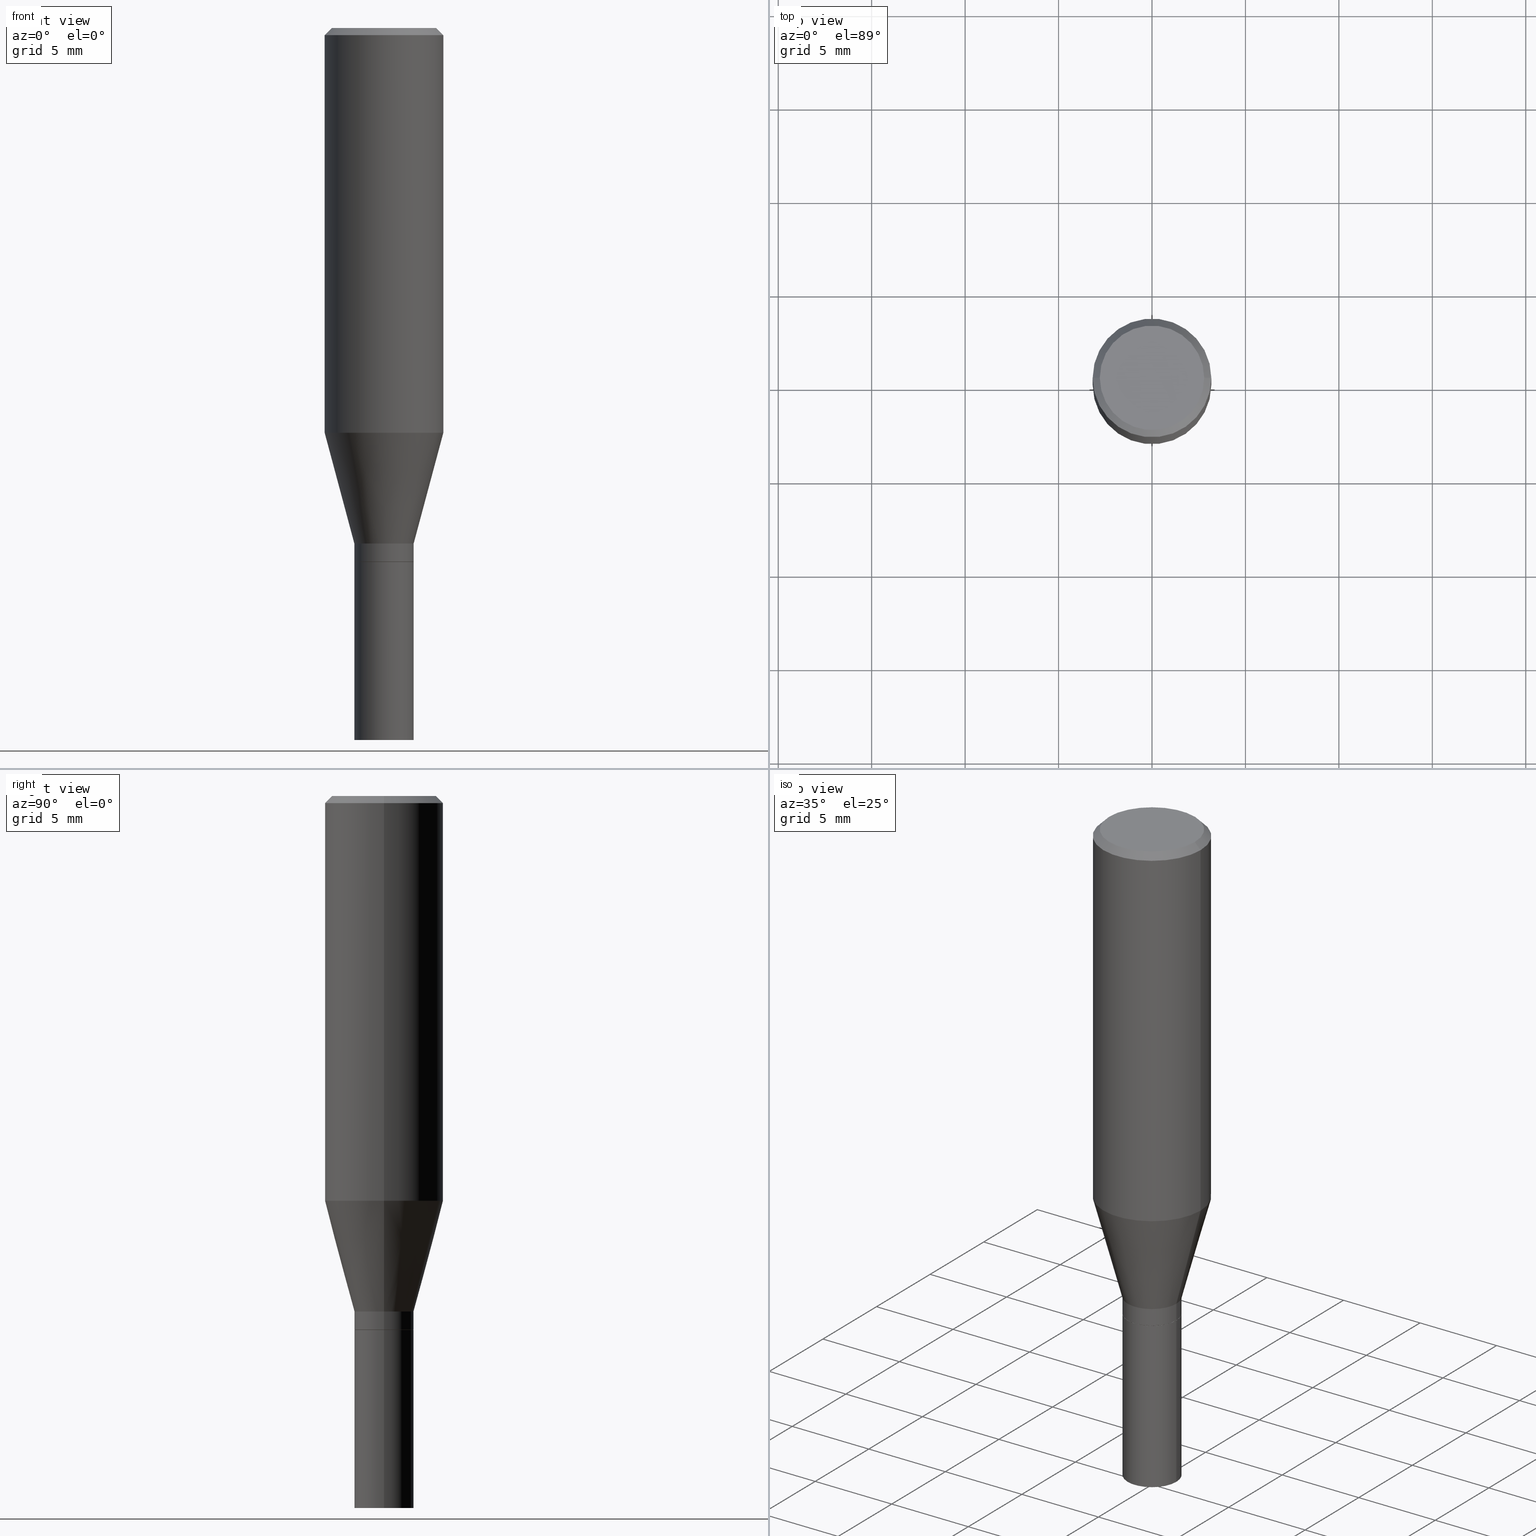
[diagram: canonical four-view strip — front | top / right | iso, engineering-drawing reading convention]
A machine part, canonical four-view strip (front | top / right | iso — engineering-drawing reading convention). The complete STEP part file that produces these views, byte-faithful:
ISO-10303-21;
HEADER;
FILE_DESCRIPTION (( 'STEP AP203' ),
    '1' );
FILE_NAME ('32270.STEP',
    '2024-03-13T16:37:03',
    ( '' ),
    ( '' ),
    'SwSTEP 2.0',
    'SolidWorks 2023',
    '' );
FILE_SCHEMA (( 'CONFIG_CONTROL_DESIGN' ));
ENDSEC;

DATA;
#1 = ADVANCED_FACE ( 'NONE', ( #270 ), #175, .T. ) ;
#2 = EDGE_LOOP ( 'NONE', ( #282, #218, #55, #86 ) ) ;
#3 = DIRECTION ( 'NONE',  ( 1.000000000000000000, -6.982962677686266711E-15, 0.000000000000000000 ) ) ;
#4 = ADVANCED_FACE ( 'NONE', ( #27 ), #19, .T. ) ;
#5 = AXIS2_PLACEMENT_3D ( 'NONE', #310, #352, #205 ) ;
#6 = ORIENTED_EDGE ( 'NONE', *, *, #449, .T. ) ;
#7 = ORIENTED_EDGE ( 'NONE', *, *, #449, .F. ) ;
#8 = ORIENTED_EDGE ( 'NONE', *, *, #350, .T. ) ;
#9 = DIRECTION ( 'NONE',  ( -2.445468806185136597E-29, 3.491481338843145583E-15, 1.000000000000000000 ) ) ;
#10 = PRODUCT ( '32270', '32270', '', ( #125 ) ) ;
#11 = VERTEX_POINT ( 'NONE', #241 ) ;
#12 = CARTESIAN_POINT ( 'NONE',  ( 2.751152406958279232E-29, -3.927916506198539224E-15, -1.125000000000000222 ) ) ;
#13 = AXIS2_PLACEMENT_3D ( 'NONE', #423, #394, #319 ) ;
#14 = ORIENTED_EDGE ( 'NONE', *, *, #193, .F. ) ;
#15 =( CONVERSION_BASED_UNIT ( 'INCH', #258 ) LENGTH_UNIT ( ) NAMED_UNIT ( #190 ) );
#16 = APPROVAL_DATE_TIME ( #343, #266 ) ;
#17 = ADVANCED_FACE ( 'NONE', ( #465 ), #358, .T. ) ;
#18 = PERSON_AND_ORGANIZATION ( #22, #92 ) ;
#19 = CONICAL_SURFACE ( 'NONE', #26, 0.06249999999999992367, 0.2617993877991499074 ) ;
#20 = VECTOR ( 'NONE', #412, 39.37007874015748143 ) ;
#21 = COORDINATED_UNIVERSAL_TIME_OFFSET ( 5, 0, .BEHIND. ) ;
#22 = PERSON ( 'UNSPECIFIED', 'UNSPECIFIED', 'UNSPECIFIED', ('UNSPECIFIED'), ('UNSPECIFIED'), ('UNSPECIFIED') ) ;
#23 = CC_DESIGN_DATE_AND_TIME_ASSIGNMENT ( #102, #264, ( #398 ) ) ;
#24 = DIRECTION ( 'NONE',  ( -2.445468806185136597E-29, 3.491481338843145583E-15, 1.000000000000000000 ) ) ;
#25 = CARTESIAN_POINT ( 'NONE',  ( 2.749929672555186430E-29, -3.926170765529117721E-15, -1.124500000000000055 ) ) ;
#26 = AXIS2_PLACEMENT_3D ( 'NONE', #210, #105, #183 ) ;
#27 = FACE_OUTER_BOUND ( 'NONE', #74, .T. ) ;
#28 = CARTESIAN_POINT ( 'NONE',  ( 0.000000000000000000, 0.000000000000000000, 0.000000000000000000 ) ) ;
#29 = CARTESIAN_POINT ( 'NONE',  ( 0.06199999999999999956, -4.360860192215087098E-15, -1.125000000000000000 ) ) ;
#30 = CARTESIAN_POINT ( 'NONE',  ( 0.000000000000000000, 0.000000000000000000, 0.000000000000000000 ) ) ;
#31 = PERSON_AND_ORGANIZATION_ROLE ( 'creator' ) ;
#32 = CARTESIAN_POINT ( 'NONE',  ( 2.751152406958279232E-29, -3.927916506198539224E-15, -1.125000000000000222 ) ) ;
#33 = CARTESIAN_POINT ( 'NONE',  ( 0.1250000000000000000, -9.252425547934304180E-16, -0.01499999999999999944 ) ) ;
#34 = APPLICATION_CONTEXT ( 'configuration controlled 3d designs of mechanical parts and assemblies' ) ;
#35 = CYLINDRICAL_SURFACE ( 'NONE', #36, 0.06250000000000000000 ) ;
#36 = AXIS2_PLACEMENT_3D ( 'NONE', #180, #397, #236 ) ;
#37 = AXIS2_PLACEMENT_3D ( 'NONE', #25, #277, #457 ) ;
#38 = ORIENTED_EDGE ( 'NONE', *, *, #233, .T. ) ;
#39 = EDGE_CURVE ( 'NONE', #369, #331, #212, .T. ) ;
#40 = FACE_OUTER_BOUND ( 'NONE', #225, .T. ) ;
#41 = ORIENTED_EDGE ( 'NONE', *, *, #389, .T. ) ;
#42 = AXIS2_PLACEMENT_3D ( 'NONE', #234, #172, #63 ) ;
#43 = EDGE_LOOP ( 'NONE', ( #409, #110, #404, #434 ) ) ;
#44 = AXIS2_PLACEMENT_3D ( 'NONE', #28, #279, #177 ) ;
#45 = ORIENTED_EDGE ( 'NONE', *, *, #170, .T. ) ;
#46 = ORIENTED_EDGE ( 'NONE', *, *, #339, .T. ) ;
#47 = CARTESIAN_POINT ( 'NONE',  ( 3.576687321579069994E-29, -5.368277968210015545E-15, -1.500000000000000222 ) ) ;
#48 = FACE_OUTER_BOUND ( 'NONE', #2, .T. ) ;
#49 = VERTEX_POINT ( 'NONE', #362 ) ;
#50 = EDGE_CURVE ( 'NONE', #369, #257, #133, .T. ) ;
#51 = CARTESIAN_POINT ( 'NONE',  ( 0.1250000000000000000, -3.850219959304363208E-15, -0.8527468245269455016 ) ) ;
#52 = LINE ( 'NONE', #444, #203 ) ;
#53 =( NAMED_UNIT ( * ) SI_UNIT ( $, .STERADIAN. ) SOLID_ANGLE_UNIT ( ) );
#54 = APPROVAL_PERSON_ORGANIZATION ( #275, #377, #359 ) ;
#55 = ORIENTED_EDGE ( 'NONE', *, *, #84, .T. ) ;
#56 = DATE_AND_TIME ( #380, #151 ) ;
#57 = UNCERTAINTY_MEASURE_WITH_UNIT (LENGTH_MEASURE( 1.000000000000000082E-05 ), #15, 'distance_accuracy_value', 'NONE');
#58 = PERSON_AND_ORGANIZATION_ROLE ( 'design_owner' ) ;
#59 = AXIS2_PLACEMENT_3D ( 'NONE', #30, #24, #243 ) ;
#60 = CARTESIAN_POINT ( 'NONE',  ( 2.655779123517058654E-29, -3.791748733983656424E-15, -1.086000000000000076 ) ) ;
#61 = EDGE_CURVE ( 'NONE', #375, #120, #323, .T. ) ;
#62 = EDGE_LOOP ( 'NONE', ( #127, #436, #156, #435 ) ) ;
#63 = DIRECTION ( 'NONE',  ( 1.000000000000000000, -6.982962677686262766E-15, 0.000000000000000000 ) ) ;
#64 = PERSON_AND_ORGANIZATION_ROLE ( 'classification_officer' ) ;
#65 = DIRECTION ( 'NONE',  ( -0.2588190451025211836, 5.211531920934547886E-15, 0.9659258262890679791 ) ) ;
#66 = CARTESIAN_POINT ( 'NONE',  ( 2.751152406958278671E-29, -3.927916506198539224E-15, -1.125000000000000000 ) ) ;
#67 = ADVANCED_FACE ( 'NONE', ( #139 ), #321, .T. ) ;
#68 = APPROVAL_DATE_TIME ( #56, #382 ) ;
#69 = DIRECTION ( 'NONE',  ( -2.445468806185136597E-29, 3.491481338843145583E-15, 1.000000000000000000 ) ) ;
#70 = DIRECTION ( 'NONE',  ( -2.438088387897960049E-29, 3.491481338843145188E-15, 1.000000000000000000 ) ) ;
#71 = DIRECTION ( 'NONE',  ( -2.445468806185136597E-29, 3.491481338843145583E-15, 1.000000000000000000 ) ) ;
#72 = CIRCLE ( 'NONE', #417, 0.06250000000000000000 ) ;
#73 = LOCAL_TIME ( 12, 37, 3.000000000000000000, #21 ) ;
#74 = EDGE_LOOP ( 'NONE', ( #152, #252, #191, #368 ) ) ;
#75 = EDGE_CURVE ( 'NONE', #257, #432, #281, .T. ) ;
#76 = DESIGN_CONTEXT ( 'detailed design', #34, 'design' ) ;
#77 = VERTEX_POINT ( 'NONE', #108 ) ;
#78 = EDGE_LOOP ( 'NONE', ( #195, #41, #442, #147 ) ) ;
#79 = LINE ( 'NONE', #222, #448 ) ;
#80 = PRODUCT_DEFINITION ( 'UNKNOWN', '', #338, #76 ) ;
#81 = CONICAL_SURFACE ( 'NONE', #346, 0.06199999999999999956, 0.7853981633977471510 ) ;
#82 = CC_DESIGN_APPROVAL ( #382, ( #338 ) ) ;
#83 = DIRECTION ( 'NONE',  ( 2.445468806185136597E-29, -3.491481338843145583E-15, -1.000000000000000000 ) ) ;
#84 = EDGE_CURVE ( 'NONE', #432, #91, #396, .T. ) ;
#85 = ADVANCED_FACE ( 'NONE', ( #353 ), #459, .F. ) ;
#86 = ORIENTED_EDGE ( 'NONE', *, *, #350, .F. ) ;
#87 = APPROVAL_ROLE ( '' ) ;
#88 = DIRECTION ( 'NONE',  ( -2.445468806185136597E-29, 3.491481338843145583E-15, 1.000000000000000000 ) ) ;
#89 = DIRECTION ( 'NONE',  ( 1.000000000000000000, -6.982962677686266711E-15, 4.876001053725558154E-29 ) ) ;
#90 = EDGE_CURVE ( 'NONE', #91, #371, #209, .T. ) ;
#91 = VERTEX_POINT ( 'NONE', #33 ) ;
#92 = ORGANIZATION ( 'UNSPECIFIED', 'UNSPECIFIED', '' ) ;
#93 = ORIENTED_EDGE ( 'NONE', *, *, #263, .T. ) ;
#94 = DIRECTION ( 'NONE',  ( 1.000000000000000000, -6.982962677686262766E-15, 0.000000000000000000 ) ) ;
#95 = DIRECTION ( 'NONE',  ( -2.445468806185136597E-29, 3.491481338843145583E-15, 1.000000000000000000 ) ) ;
#96 = CALENDAR_DATE ( 2024, 13, 3 ) ;
#97 = CIRCLE ( 'NONE', #253, 0.1100000000000000006 ) ;
#98 = CONICAL_SURFACE ( 'NONE', #268, 0.1250000000000000000, 0.7853981633974483900 ) ;
#99 = DIRECTION ( 'NONE',  ( -2.445468806185136597E-29, 3.491481338843145583E-15, 1.000000000000000000 ) ) ;
#100 = DIRECTION ( 'NONE',  ( 1.000000000000000000, -6.982962677686262766E-15, 0.000000000000000000 ) ) ;
#101 = FACE_OUTER_BOUND ( 'NONE', #301, .T. ) ;
#102 = DATE_AND_TIME ( #361, #327 ) ;
#103 = ADVANCED_FACE ( 'NONE', ( #278 ), #35, .T. ) ;
#104 = AXIS2_PLACEMENT_3D ( 'NONE', #12, #376, #94 ) ;
#105 = DIRECTION ( 'NONE',  ( -2.445468806185136597E-29, 3.491481338843145583E-15, 1.000000000000000000 ) ) ;
#106 = CARTESIAN_POINT ( 'NONE',  ( -0.06250000000000000000, -4.138480047381566479E-15, -1.500000000000000222 ) ) ;
#107 = DIRECTION ( 'NONE',  ( -2.445468806185136597E-29, 3.491481338843145583E-15, 1.000000000000000000 ) ) ;
#108 = CARTESIAN_POINT ( 'NONE',  ( 0.1100000000000000006, -8.322946247794786836E-16, -7.674416657715788472E-18 ) ) ;
#109 = CC_DESIGN_PERSON_AND_ORGANIZATION_ASSIGNMENT ( #314, #31, ( #338 ) ) ;
#110 = ORIENTED_EDGE ( 'NONE', *, *, #39, .T. ) ;
#111 = CONICAL_SURFACE ( 'NONE', #119, 0.06249999999999992367, 0.2617993877991499074 ) ;
#112 = ORIENTED_EDGE ( 'NONE', *, *, #223, .F. ) ;
#113 = FACE_OUTER_BOUND ( 'NONE', #62, .T. ) ;
#114 = VERTEX_POINT ( 'NONE', #318 ) ;
#115 = EDGE_LOOP ( 'NONE', ( #247, #46, #112, #298 ) ) ;
#116 = PLANE ( 'NONE',  #141 ) ;
#117 = ORIENTED_EDGE ( 'NONE', *, *, #441, .F. ) ;
#118 = EDGE_CURVE ( 'NONE', #375, #11, #238, .T. ) ;
#119 = AXIS2_PLACEMENT_3D ( 'NONE', #207, #272, #420 ) ;
#120 = VERTEX_POINT ( 'NONE', #215 ) ;
#121 = AXIS2_PLACEMENT_3D ( 'NONE', #206, #351, #317 ) ;
#122 =( NAMED_UNIT ( * ) PLANE_ANGLE_UNIT ( ) SI_UNIT ( $, .RADIAN. ) );
#123 = DIRECTION ( 'NONE',  ( -2.438088387897960049E-29, 3.491481338843145188E-15, 1.000000000000000000 ) ) ;
#124 = CARTESIAN_POINT ( 'NONE',  ( 3.668203209277705088E-31, -5.237222008264718399E-17, -0.01499999999999999944 ) ) ;
#125 = MECHANICAL_CONTEXT ( 'NONE', #451, 'mechanical' ) ;
#126 = EDGE_CURVE ( 'NONE', #379, #293, #453, .T. ) ;
#127 = ORIENTED_EDGE ( 'NONE', *, *, #332, .T. ) ;
#128 = CALENDAR_DATE ( 2024, 13, 3 ) ;
#129 = CIRCLE ( 'NONE', #37, 0.06250000000000019429 ) ;
#130 = CARTESIAN_POINT ( 'NONE',  ( -0.1250000000000000000, 8.204981146281362596E-16, -0.01499999999999999944 ) ) ;
#131 =( GEOMETRIC_REPRESENTATION_CONTEXT ( 3 ) GLOBAL_UNCERTAINTY_ASSIGNED_CONTEXT ( ( #57 ) ) GLOBAL_UNIT_ASSIGNED_CONTEXT ( ( #15, #122, #53 ) ) REPRESENTATION_CONTEXT ( 'NONE', 'WORKASPACE' ) );
#132 = DIRECTION ( 'NONE',  ( 0.7071067811865475727, -7.319954787623256045E-15, -0.7071067811865474617 ) ) ;
#133 = CIRCLE ( 'NONE', #410, 0.06249999999999992367 ) ;
#134 = APPROVAL_PERSON_ORGANIZATION ( #262, #382, #87 ) ;
#135 = DIRECTION ( 'NONE',  ( 2.438088387897960049E-29, -3.491481338843145188E-15, -1.000000000000000000 ) ) ;
#136 = DIRECTION ( 'NONE',  ( -2.445468806185136597E-29, 3.491481338843145583E-15, 1.000000000000000000 ) ) ;
#137 = CARTESIAN_POINT ( 'NONE',  ( 0.06250000000000000000, -4.364351673553916694E-16, 3.047610484872459871E-30 ) ) ;
#138 = CARTESIAN_POINT ( 'NONE',  ( 0.06249999999999992367, -4.228183901339047304E-15, -1.086000000000000076 ) ) ;
#139 = FACE_OUTER_BOUND ( 'NONE', #115, .T. ) ;
#140 = PERSON_AND_ORGANIZATION ( #22, #92 ) ;
#141 = AXIS2_PLACEMENT_3D ( 'NONE', #47, #123, #155 ) ;
#142 = CC_DESIGN_SECURITY_CLASSIFICATION ( #398, ( #338 ) ) ;
#143 = CARTESIAN_POINT ( 'NONE',  ( -0.06249999999999992367, -3.347659524133594202E-15, -1.086000000000000076 ) ) ;
#144 = DIRECTION ( 'NONE',  ( 1.000000000000000000, -6.982962677686262766E-15, 0.000000000000000000 ) ) ;
#145 = ADVANCED_FACE ( 'NONE', ( #458 ), #111, .T. ) ;
#146 = DIRECTION ( 'NONE',  ( 1.000000000000000000, -6.982962677686262766E-15, 0.000000000000000000 ) ) ;
#147 = ORIENTED_EDGE ( 'NONE', *, *, #296, .F. ) ;
#148 = DIRECTION ( 'NONE',  ( -1.000000000000000000, 6.982962677686266711E-15, 0.000000000000000000 ) ) ;
#149 = ORIENTED_EDGE ( 'NONE', *, *, #332, .F. ) ;
#150 = VECTOR ( 'NONE', #429, 39.37007874015748854 ) ;
#151 = LOCAL_TIME ( 12, 37, 3.000000000000000000, #443 ) ;
#152 = ORIENTED_EDGE ( 'NONE', *, *, #39, .F. ) ;
#153 = CARTESIAN_POINT ( 'NONE',  ( 0.000000000000000000, 0.000000000000000000, 0.000000000000000000 ) ) ;
#154 = ORIENTED_EDGE ( 'NONE', *, *, #240, .T. ) ;
#155 = DIRECTION ( 'NONE',  ( 1.000000000000000000, -6.982962677686265922E-15, 4.876176775795935793E-29 ) ) ;
#156 = ORIENTED_EDGE ( 'NONE', *, *, #450, .F. ) ;
#157 = AXIS2_PLACEMENT_3D ( 'NONE', #213, #274, #280 ) ;
#158 = CARTESIAN_POINT ( 'NONE',  ( 0.000000000000000000, 0.000000000000000000, 0.000000000000000000 ) ) ;
#159 = DIRECTION ( 'NONE',  ( -2.445468806185136877E-29, 3.491481338843145188E-15, 1.000000000000000000 ) ) ;
#160 = ADVANCED_FACE ( 'NONE', ( #101 ), #337, .T. ) ;
#161 = MANIFOLD_SOLID_BREP ( 'Body-Move/Copy2[1]', #306 ) ;
#162 = EDGE_LOOP ( 'NONE', ( #330, #154 ) ) ;
#163 = LINE ( 'NONE', #341, #182 ) ;
#164 = DIRECTION ( 'NONE',  ( -2.445468806185136877E-29, 3.491481338843145188E-15, 1.000000000000000000 ) ) ;
#165 = LINE ( 'NONE', #130, #307 ) ;
#166 = VECTOR ( 'NONE', #164, 39.37007874015748143 ) ;
#167 = CC_DESIGN_PERSON_AND_ORGANIZATION_ASSIGNMENT ( #18, #58, ( #10 ) ) ;
#168 = CARTESIAN_POINT ( 'NONE',  ( -0.1100000000000000006, 7.943120045868128186E-16, -7.674416657726847932E-18 ) ) ;
#169 = APPROVAL_ROLE ( '' ) ;
#170 = EDGE_CURVE ( 'NONE', #331, #371, #285, .T. ) ;
#171 = SECURITY_CLASSIFICATION_LEVEL ( 'unclassified' ) ;
#172 = DIRECTION ( 'NONE',  ( -2.445468806185136597E-29, 3.491481338843145583E-15, 1.000000000000000000 ) ) ;
#173 = ADVANCED_FACE ( 'NONE', ( #305 ), #81, .T. ) ;
#174 = AXIS2_PLACEMENT_3D ( 'NONE', #393, #107, #391 ) ;
#175 = CYLINDRICAL_SURFACE ( 'NONE', #174, 0.06250000000000005551 ) ;
#176 = CC_DESIGN_PERSON_AND_ORGANIZATION_ASSIGNMENT ( #140, #64, ( #398 ) ) ;
#177 = DIRECTION ( 'NONE',  ( 1.000000000000000000, -6.982962677686266711E-15, 4.876176775795935793E-29 ) ) ;
#178 = CARTESIAN_POINT ( 'NONE',  ( 2.655779123517058654E-29, -3.791748733983656424E-15, -1.086000000000000076 ) ) ;
#179 = CARTESIAN_POINT ( 'NONE',  ( -0.06199999999999999956, -3.484730782853164728E-15, -1.125000000000000000 ) ) ;
#180 = CARTESIAN_POINT ( 'NONE',  ( 0.000000000000000000, 0.000000000000000000, 0.000000000000000000 ) ) ;
#181 = CARTESIAN_POINT ( 'NONE',  ( -0.1250000000000000000, -6.266825026379885376E-16, -0.01499999999999999944 ) ) ;
#182 = VECTOR ( 'NONE', #132, 39.37007874015748143 ) ;
#183 = DIRECTION ( 'NONE',  ( 1.000000000000000000, -6.982962677686263555E-15, 0.000000000000000000 ) ) ;
#184 = ORIENTED_EDGE ( 'NONE', *, *, #90, .F. ) ;
#185 = DIRECTION ( 'NONE',  ( -0.7071067811867588482, 7.493145998871117778E-15, 0.7071067811863361863 ) ) ;
#186 = AXIS2_PLACEMENT_3D ( 'NONE', #66, #136, #146 ) ;
#187 = ORIENTED_EDGE ( 'NONE', *, *, #246, .F. ) ;
#188 = ORIENTED_EDGE ( 'NONE', *, *, #223, .T. ) ;
#189 = EDGE_LOOP ( 'NONE', ( #188, #38, #187, #14 ) ) ;
#190 = DIMENSIONAL_EXPONENTS ( 1.000000000000000000, 0.000000000000000000, 0.000000000000000000, 0.000000000000000000, 0.000000000000000000, 0.000000000000000000, 0.000000000000000000 ) ;
#191 = ORIENTED_EDGE ( 'NONE', *, *, #75, .T. ) ;
#192 = CARTESIAN_POINT ( 'NONE',  ( 2.085365758954075532E-29, -2.977349624593580658E-15, -0.8527468245269455016 ) ) ;
#193 = EDGE_CURVE ( 'NONE', #114, #257, #372, .T. ) ;
#194 = VECTOR ( 'NONE', #245, 39.37007874015748143 ) ;
#195 = ORIENTED_EDGE ( 'NONE', *, *, #339, .F. ) ;
#196 = CIRCLE ( 'NONE', #5, 0.1100000000000000006 ) ;
#197 = DIRECTION ( 'NONE',  ( 1.000000000000000000, 0.000000000000000000, 0.000000000000000000 ) ) ;
#198 = EDGE_LOOP ( 'NONE', ( #149, #303 ) ) ;
#199 = APPLICATION_PROTOCOL_DEFINITION ( 'international standard', 'config_control_design', 1994, #34 ) ;
#200 = DIRECTION ( 'NONE',  ( -1.000000000000000000, 6.982962677686265922E-15, -4.876176775795935793E-29 ) ) ;
#201 = DATE_TIME_ROLE ( 'creation_date' ) ;
#202 = FACE_OUTER_BOUND ( 'NONE', #198, .T. ) ;
#203 = VECTOR ( 'NONE', #259, 39.37007874015748143 ) ;
#204 = ADVANCED_FACE ( 'NONE', ( #202 ), #116, .F. ) ;
#205 = DIRECTION ( 'NONE',  ( 1.000000000000000000, -6.982962677686266711E-15, 4.876001053725558154E-29 ) ) ;
#206 = CARTESIAN_POINT ( 'NONE',  ( 4.364351673554191316E-16, 0.06249999999999607259, -1.125000000000000444 ) ) ;
#207 = CARTESIAN_POINT ( 'NONE',  ( 2.655779123517058654E-29, -3.791748733983656424E-15, -1.086000000000000076 ) ) ;
#208 = DATE_AND_TIME ( #96, #411 ) ;
#209 = CIRCLE ( 'NONE', #312, 0.1250000000000000000 ) ;
#210 = CARTESIAN_POINT ( 'NONE',  ( 2.655779123517058654E-29, -3.791748733983656424E-15, -1.086000000000000076 ) ) ;
#211 = DIRECTION ( 'NONE',  ( 1.000000000000000000, -6.982962677686265922E-15, 4.876176775795935793E-29 ) ) ;
#212 = LINE ( 'NONE', #143, #392 ) ;
#213 = CARTESIAN_POINT ( 'NONE',  ( 2.085365758954075532E-29, -2.977349624593580658E-15, -0.8527468245269455016 ) ) ;
#214 = AXIS2_PLACEMENT_3D ( 'NONE', #378, #269, #384 ) ;
#215 = CARTESIAN_POINT ( 'NONE',  ( -0.06250000000000000000, -4.138480047381566479E-15, -1.125000000000000222 ) ) ;
#216 = CARTESIAN_POINT ( 'NONE',  ( -0.06249999999999992367, -2.718415364513524617E-15, -1.086000000000000076 ) ) ;
#217 = ORIENTED_EDGE ( 'NONE', *, *, #193, .T. ) ;
#218 = ORIENTED_EDGE ( 'NONE', *, *, #461, .T. ) ;
#219 = ORIENTED_EDGE ( 'NONE', *, *, #389, .F. ) ;
#220 = AXIS2_PLACEMENT_3D ( 'NONE', #464, #390, #144 ) ;
#221 = CARTESIAN_POINT ( 'NONE',  ( -0.1250000000000000000, 8.881784197001252323E-16, -6.148668862818632227E-30 ) ) ;
#222 = CARTESIAN_POINT ( 'NONE',  ( -0.06199999999999999956, -3.487380010027277112E-15, -1.125000000000000000 ) ) ;
#223 = EDGE_CURVE ( 'NONE', #114, #430, #403, .T. ) ;
#224 = DIRECTION ( 'NONE',  ( 1.000000000000000000, -6.982962677686264344E-15, 0.000000000000000000 ) ) ;
#225 = EDGE_LOOP ( 'NONE', ( #287, #325, #254, #7 ) ) ;
#226 = CYLINDRICAL_SURFACE ( 'NONE', #214, 0.06250000000000005551 ) ;
#227 = CIRCLE ( 'NONE', #220, 0.06250000000000000000 ) ;
#228 = PERSON_AND_ORGANIZATION ( #22, #92 ) ;
#229 = CARTESIAN_POINT ( 'NONE',  ( 1.876754654212523840E-46, -2.679508254694119990E-32, -7.674416657721384454E-18 ) ) ;
#230 =( LENGTH_UNIT ( ) NAMED_UNIT ( * ) SI_UNIT ( $, .METRE. ) );
#231 = CARTESIAN_POINT ( 'NONE',  ( 2.751152406958278671E-29, -3.927916506198539224E-15, -1.125000000000000000 ) ) ;
#232 = AXIS2_PLACEMENT_3D ( 'NONE', #158, #413, #197 ) ;
#233 = EDGE_CURVE ( 'NONE', #430, #369, #52, .T. ) ;
#234 = CARTESIAN_POINT ( 'NONE',  ( 2.751152406958278671E-29, -3.927916506198539224E-15, -1.125000000000000000 ) ) ;
#235 = LINE ( 'NONE', #137, #385 ) ;
#236 = DIRECTION ( 'NONE',  ( 1.000000000000000000, -6.982962677686266711E-15, 4.876176775795935793E-29 ) ) ;
#237 = APPROVAL_DATE_TIME ( #208, #377 ) ;
#238 = CIRCLE ( 'NONE', #363, 0.06250000000000000000 ) ;
#239 = AXIS2_PLACEMENT_3D ( 'NONE', #153, #9, #295 ) ;
#240 = EDGE_CURVE ( 'NONE', #77, #462, #97, .T. ) ;
#241 = CARTESIAN_POINT ( 'NONE',  ( 0.06250000000000000000, -5.673657175620109846E-15, -1.500000000000000222 ) ) ;
#242 = CARTESIAN_POINT ( 'NONE',  ( 0.06199999999999999956, -4.360860192215087098E-15, -1.125000000000000000 ) ) ;
#243 = DIRECTION ( 'NONE',  ( 1.000000000000000000, -6.982962677686266711E-15, 4.876176775795935793E-29 ) ) ;
#244 = ADVANCED_FACE ( 'NONE', ( #344 ), #226, .T. ) ;
#245 = DIRECTION ( 'NONE',  ( -2.445468806185136877E-29, 3.491481338843145188E-15, 1.000000000000000000 ) ) ;
#246 = EDGE_CURVE ( 'NONE', #257, #369, #416, .T. ) ;
#247 = ORIENTED_EDGE ( 'NONE', *, *, #126, .T. ) ;
#248 = CC_DESIGN_PERSON_AND_ORGANIZATION_ASSIGNMENT ( #439, #299, ( #80 ) ) ;
#249 = EDGE_LOOP ( 'NONE', ( #446, #290, #217, #400 ) ) ;
#250 = DIRECTION ( 'NONE',  ( 1.000000000000000000, -6.982962677686263555E-15, 0.000000000000000000 ) ) ;
#251 = EDGE_LOOP ( 'NONE', ( #437, #45, #184, #291 ) ) ;
#252 = ORIENTED_EDGE ( 'NONE', *, *, #50, .T. ) ;
#253 = AXIS2_PLACEMENT_3D ( 'NONE', #229, #381, #89 ) ;
#254 = ORIENTED_EDGE ( 'NONE', *, *, #90, .T. ) ;
#255 = COORDINATED_UNIVERSAL_TIME_OFFSET ( 5, 0, .BEHIND. ) ;
#256 = CARTESIAN_POINT ( 'NONE',  ( 2.749929672555186430E-29, -3.926170765529117721E-15, -1.124500000000000055 ) ) ;
#257 = VERTEX_POINT ( 'NONE', #309 ) ;
#258 = LENGTH_MEASURE_WITH_UNIT ( LENGTH_MEASURE( 0.02539999999999999897 ), #230 );
#259 = DIRECTION ( 'NONE',  ( -2.445468806185136877E-29, 3.491481338843145188E-15, 1.000000000000000000 ) ) ;
#260 = EDGE_LOOP ( 'NONE', ( #366, #219 ) ) ;
#261 = CIRCLE ( 'NONE', #104, 0.06250000000000000000 ) ;
#262 = PERSON_AND_ORGANIZATION ( #22, #92 ) ;
#263 = EDGE_CURVE ( 'NONE', #120, #49, #72, .T. ) ;
#264 = DATE_TIME_ROLE ( 'classification_date' ) ;
#265 = FACE_OUTER_BOUND ( 'NONE', #162, .T. ) ;
#266 = APPROVAL ( #349, 'UNSPECIFIED' ) ;
#267 = AXIS2_PLACEMENT_3D ( 'NONE', #60, #69, #250 ) ;
#268 = AXIS2_PLACEMENT_3D ( 'NONE', #373, #433, #292 ) ;
#269 = DIRECTION ( 'NONE',  ( -2.445468806185136597E-29, 3.491481338843145583E-15, 1.000000000000000000 ) ) ;
#270 = FACE_OUTER_BOUND ( 'NONE', #249, .T. ) ;
#271 = DIRECTION ( 'NONE',  ( 1.000000000000000000, -6.982962677686262766E-15, 0.000000000000000000 ) ) ;
#272 = DIRECTION ( 'NONE',  ( -2.445468806185136597E-29, 3.491481338843145583E-15, 1.000000000000000000 ) ) ;
#273 = DIRECTION ( 'NONE',  ( -2.445468806185136597E-29, 3.491481338843145583E-15, 1.000000000000000000 ) ) ;
#274 = DIRECTION ( 'NONE',  ( -2.445468806185136597E-29, 3.491481338843145583E-15, 1.000000000000000000 ) ) ;
#275 = PERSON_AND_ORGANIZATION ( #22, #92 ) ;
#276 = VECTOR ( 'NONE', #159, 39.37007874015748143 ) ;
#277 = DIRECTION ( 'NONE',  ( -2.445468806185136597E-29, 3.491481338843145583E-15, 1.000000000000000000 ) ) ;
#278 = FACE_OUTER_BOUND ( 'NONE', #401, .T. ) ;
#279 = DIRECTION ( 'NONE',  ( -2.445468806185136597E-29, 3.491481338843145583E-15, 1.000000000000000000 ) ) ;
#280 = DIRECTION ( 'NONE',  ( 1.000000000000000000, -6.982962677686266711E-15, 0.000000000000000000 ) ) ;
#281 = LINE ( 'NONE', #138, #150 ) ;
#282 = ORIENTED_EDGE ( 'NONE', *, *, #170, .F. ) ;
#283 = CC_DESIGN_PERSON_AND_ORGANIZATION_ASSIGNMENT ( #456, #426, ( #338 ) ) ;
#284 = VECTOR ( 'NONE', #454, 39.37007874015748143 ) ;
#285 = LINE ( 'NONE', #221, #166 ) ;
#286 = CIRCLE ( 'NONE', #13, 0.06199999999999999956 ) ;
#287 = ORIENTED_EDGE ( 'NONE', *, *, #240, .F. ) ;
#288 = ORIENTED_EDGE ( 'NONE', *, *, #450, .T. ) ;
#289 = CYLINDRICAL_SURFACE ( 'NONE', #44, 0.06250000000000000000 ) ;
#290 = ORIENTED_EDGE ( 'NONE', *, *, #296, .T. ) ;
#291 = ORIENTED_EDGE ( 'NONE', *, *, #84, .F. ) ;
#292 = DIRECTION ( 'NONE',  ( -1.000000000000000000, 6.982962677686266711E-15, 0.000000000000000000 ) ) ;
#293 = VERTEX_POINT ( 'NONE', #179 ) ;
#294 = ADVANCED_FACE ( 'NONE', ( #387 ), #322, .F. ) ;
#295 = DIRECTION ( 'NONE',  ( 1.000000000000000000, -6.982962677686266711E-15, 4.876176775795935793E-29 ) ) ;
#296 = EDGE_CURVE ( 'NONE', #430, #114, #129, .T. ) ;
#297 = AXIS2_PLACEMENT_3D ( 'NONE', #124, #326, #3 ) ;
#298 = ORIENTED_EDGE ( 'NONE', *, *, #333, .F. ) ;
#299 = PERSON_AND_ORGANIZATION_ROLE ( 'creator' ) ;
#300 = DIRECTION ( 'NONE',  ( -2.445468806185136597E-29, 3.491481338843145583E-15, 1.000000000000000000 ) ) ;
#301 = EDGE_LOOP ( 'NONE', ( #117, #335, #6, #8 ) ) ;
#302 = APPLICATION_PROTOCOL_DEFINITION ( 'international standard', 'config_control_design', 1994, #451 ) ;
#303 = ORIENTED_EDGE ( 'NONE', *, *, #118, .F. ) ;
#304 = CARTESIAN_POINT ( 'NONE',  ( 3.668203209277705088E-31, -5.237222008264718399E-17, -0.01499999999999999944 ) ) ;
#305 = FACE_OUTER_BOUND ( 'NONE', #78, .T. ) ;
#306 = CLOSED_SHELL ( 'NONE', ( #367, #204, #103, #294 ) ) ;
#307 = VECTOR ( 'NONE', #345, 39.37007874015748143 ) ;
#308 = MANIFOLD_SOLID_BREP ( 'Body-Move/Copy2[2]', #438 ) ;
#309 = CARTESIAN_POINT ( 'NONE',  ( 0.06249999999999992367, -4.228183901339047304E-15, -1.086000000000000076 ) ) ;
#310 = CARTESIAN_POINT ( 'NONE',  ( 1.876754654212523840E-46, -2.679508254694119990E-32, -7.674416657721384454E-18 ) ) ;
#311 = CARTESIAN_POINT ( 'NONE',  ( 3.668203209277705088E-31, -5.237222008264718399E-17, -0.01499999999999999944 ) ) ;
#312 = AXIS2_PLACEMENT_3D ( 'NONE', #311, #422, #360 ) ;
#313 = CC_DESIGN_APPROVAL ( #377, ( #398 ) ) ;
#314 = PERSON_AND_ORGANIZATION ( #22, #92 ) ;
#315 = DIRECTION ( 'NONE',  ( 1.000000000000000000, -6.982962677686263555E-15, 0.000000000000000000 ) ) ;
#316 = CARTESIAN_POINT ( 'NONE',  ( 0.1250000000000000000, -8.728703347107833388E-16, 6.095220969744919741E-30 ) ) ;
#317 = DIRECTION ( 'NONE',  ( -1.000000000000000000, 6.982962677686265922E-15, -4.876176775795935793E-29 ) ) ;
#318 = CARTESIAN_POINT ( 'NONE',  ( 0.06250000000000019429, -4.362605932884510179E-15, -1.124500000000000055 ) ) ;
#319 = DIRECTION ( 'NONE',  ( 1.000000000000000000, -6.982962677686262766E-15, 0.000000000000000000 ) ) ;
#320 = ADVANCED_BREP_SHAPE_REPRESENTATION ( '32270', ( #161, #308, #232 ), #131 ) ;
#321 = CONICAL_SURFACE ( 'NONE', #186, 0.06199999999999999956, 0.7853981633977471510 ) ;
#322 = PLANE ( 'NONE',  #121 ) ;
#323 = LINE ( 'NONE', #418, #284 ) ;
#324 = EDGE_CURVE ( 'NONE', #11, #49, #235, .T. ) ;
#325 = ORIENTED_EDGE ( 'NONE', *, *, #441, .T. ) ;
#326 = DIRECTION ( 'NONE',  ( -2.445468806185136597E-29, 3.491481338843145583E-15, 1.000000000000000000 ) ) ;
#327 = LOCAL_TIME ( 12, 37, 3.000000000000000000, #421 ) ;
#328 = CIRCLE ( 'NONE', #297, 0.1250000000000000000 ) ;
#329 = ORIENTED_EDGE ( 'NONE', *, *, #263, .F. ) ;
#330 = ORIENTED_EDGE ( 'NONE', *, *, #402, .T. ) ;
#331 = VERTEX_POINT ( 'NONE', #427 ) ;
#332 = EDGE_CURVE ( 'NONE', #11, #375, #227, .T. ) ;
#333 = EDGE_CURVE ( 'NONE', #379, #114, #357, .T. ) ;
#334 = CYLINDRICAL_SURFACE ( 'NONE', #239, 0.1250000000000000000 ) ;
#335 = ORIENTED_EDGE ( 'NONE', *, *, #402, .F. ) ;
#336 = DIRECTION ( 'NONE',  ( 1.000000000000000000, -6.982962677686262766E-15, 0.000000000000000000 ) ) ;
#337 = CONICAL_SURFACE ( 'NONE', #424, 0.1250000000000000000, 0.7853981633974483900 ) ;
#338 = PRODUCT_DEFINITION_FORMATION_WITH_SPECIFIED_SOURCE ( 'ANY', '', #10, .NOT_KNOWN. ) ;
#339 = EDGE_CURVE ( 'NONE', #293, #430, #79, .T. ) ;
#340 = ORIENTED_EDGE ( 'NONE', *, *, #324, .T. ) ;
#341 = CARTESIAN_POINT ( 'NONE',  ( 0.1250000000000000000, -9.099344698040885245E-16, -0.01499999999999999944 ) ) ;
#342 = ADVANCED_FACE ( 'NONE', ( #40 ), #98, .T. ) ;
#343 = DATE_AND_TIME ( #445, #73 ) ;
#344 = FACE_OUTER_BOUND ( 'NONE', #189, .T. ) ;
#345 = DIRECTION ( 'NONE',  ( -0.7071067811865475727, 2.468850131082257455E-15, -0.7071067811865474617 ) ) ;
#346 = AXIS2_PLACEMENT_3D ( 'NONE', #231, #95, #336 ) ;
#347 = CIRCLE ( 'NONE', #157, 0.1250000000000000000 ) ;
#348 = ADVANCED_FACE ( 'NONE', ( #48 ), #334, .T. ) ;
#349 = APPROVAL_STATUS ( 'not_yet_approved' ) ;
#350 = EDGE_CURVE ( 'NONE', #371, #91, #328, .T. ) ;
#351 = DIRECTION ( 'NONE',  ( 2.438088387897960049E-29, -3.491481338843145188E-15, -1.000000000000000000 ) ) ;
#352 = DIRECTION ( 'NONE',  ( -2.445468806185136597E-29, 3.491481338843145583E-15, 1.000000000000000000 ) ) ;
#353 = FACE_OUTER_BOUND ( 'NONE', #260, .T. ) ;
#354 = AXIS2_PLACEMENT_3D ( 'NONE', #388, #70, #211 ) ;
#355 = LOCAL_TIME ( 12, 37, 3.000000000000000000, #255 ) ;
#356 = SHAPE_DEFINITION_REPRESENTATION ( #405, #320 ) ;
#357 = LINE ( 'NONE', #29, #20 ) ;
#358 = CYLINDRICAL_SURFACE ( 'NONE', #59, 0.1250000000000000000 ) ;
#359 = APPROVAL_ROLE ( '' ) ;
#360 = DIRECTION ( 'NONE',  ( 1.000000000000000000, -6.982962677686266711E-15, 0.000000000000000000 ) ) ;
#361 = CALENDAR_DATE ( 2024, 13, 3 ) ;
#362 = CARTESIAN_POINT ( 'NONE',  ( 0.06250000000000000000, -4.364351673553930894E-15, -1.125000000000000222 ) ) ;
#363 = AXIS2_PLACEMENT_3D ( 'NONE', #428, #71, #100 ) ;
#364 = CC_DESIGN_DATE_AND_TIME_ASSIGNMENT ( #406, #201, ( #80 ) ) ;
#365 = APPROVAL_PERSON_ORGANIZATION ( #228, #266, #169 ) ;
#366 = ORIENTED_EDGE ( 'NONE', *, *, #126, .F. ) ;
#367 = ADVANCED_FACE ( 'NONE', ( #113 ), #289, .T. ) ;
#368 = ORIENTED_EDGE ( 'NONE', *, *, #461, .F. ) ;
#369 = VERTEX_POINT ( 'NONE', #216 ) ;
#370 = EDGE_LOOP ( 'NONE', ( #288, #93 ) ) ;
#371 = VERTEX_POINT ( 'NONE', #181 ) ;
#372 = LINE ( 'NONE', #408, #276 ) ;
#373 = CARTESIAN_POINT ( 'NONE',  ( 3.668203209277705088E-31, -5.237222008264718399E-17, -0.01499999999999999944 ) ) ;
#374 = CARTESIAN_POINT ( 'NONE',  ( -0.06250000000000019429, -3.482081555679053921E-15, -1.124500000000000055 ) ) ;
#375 = VERTEX_POINT ( 'NONE', #106 ) ;
#376 = DIRECTION ( 'NONE',  ( -2.445468806185136597E-29, 3.491481338843145583E-15, 1.000000000000000000 ) ) ;
#377 = APPROVAL ( #460, 'UNSPECIFIED' ) ;
#378 = CARTESIAN_POINT ( 'NONE',  ( 0.000000000000000000, 0.000000000000000000, 0.000000000000000000 ) ) ;
#379 = VERTEX_POINT ( 'NONE', #242 ) ;
#380 = CALENDAR_DATE ( 2024, 13, 3 ) ;
#381 = DIRECTION ( 'NONE',  ( -2.445468806185136597E-29, 3.491481338843145583E-15, 1.000000000000000000 ) ) ;
#382 = APPROVAL ( #447, 'UNSPECIFIED' ) ;
#383 = DIRECTION ( 'NONE',  ( 1.000000000000000000, -6.982962677686266711E-15, 0.000000000000000000 ) ) ;
#384 = DIRECTION ( 'NONE',  ( 1.000000000000000000, -6.982962677686267499E-15, 4.876176775795936353E-29 ) ) ;
#385 = VECTOR ( 'NONE', #395, 39.37007874015748143 ) ;
#386 = EDGE_CURVE ( 'NONE', #432, #331, #347, .T. ) ;
#387 = FACE_OUTER_BOUND ( 'NONE', #370, .T. ) ;
#388 = CARTESIAN_POINT ( 'NONE',  ( 2.751152406958279232E-29, -3.927916506198539224E-15, -1.125000000000000222 ) ) ;
#389 = EDGE_CURVE ( 'NONE', #293, #379, #286, .T. ) ;
#390 = DIRECTION ( 'NONE',  ( -2.445468806185136597E-29, 3.491481338843145583E-15, 1.000000000000000000 ) ) ;
#391 = DIRECTION ( 'NONE',  ( 1.000000000000000000, -6.982962677686267499E-15, 4.876176775795936353E-29 ) ) ;
#392 = VECTOR ( 'NONE', #65, 39.37007874015748854 ) ;
#393 = CARTESIAN_POINT ( 'NONE',  ( 0.000000000000000000, 0.000000000000000000, 0.000000000000000000 ) ) ;
#394 = DIRECTION ( 'NONE',  ( -2.445468806185136597E-29, 3.491481338843145583E-15, 1.000000000000000000 ) ) ;
#395 = DIRECTION ( 'NONE',  ( -2.445468806185136877E-29, 3.491481338843145188E-15, 1.000000000000000000 ) ) ;
#396 = LINE ( 'NONE', #316, #194 ) ;
#397 = DIRECTION ( 'NONE',  ( -2.445468806185136597E-29, 3.491481338843145583E-15, 1.000000000000000000 ) ) ;
#398 = SECURITY_CLASSIFICATION ( '', '', #171 ) ;
#399 = ORIENTED_EDGE ( 'NONE', *, *, #118, .T. ) ;
#400 = ORIENTED_EDGE ( 'NONE', *, *, #50, .F. ) ;
#401 = EDGE_LOOP ( 'NONE', ( #466, #399, #340, #329 ) ) ;
#402 = EDGE_CURVE ( 'NONE', #462, #77, #196, .T. ) ;
#403 = CIRCLE ( 'NONE', #463, 0.06250000000000019429 ) ;
#404 = ORIENTED_EDGE ( 'NONE', *, *, #386, .F. ) ;
#405 = PRODUCT_DEFINITION_SHAPE ( 'NONE', 'NONE',  #80 ) ;
#406 = DATE_AND_TIME ( #128, #355 ) ;
#407 = PRODUCT_RELATED_PRODUCT_CATEGORY ( 'detail', '', ( #10 ) ) ;
#408 = CARTESIAN_POINT ( 'NONE',  ( 0.06250000000000005551, -4.364351673553921131E-16, 3.047610484872463023E-30 ) ) ;
#409 = ORIENTED_EDGE ( 'NONE', *, *, #246, .T. ) ;
#410 = AXIS2_PLACEMENT_3D ( 'NONE', #178, #273, #315 ) ;
#411 = LOCAL_TIME ( 12, 37, 3.000000000000000000, #414 ) ;
#412 = DIRECTION ( 'NONE',  ( 0.7071067811867588482, -2.468850131084470210E-15, 0.7071067811863361863 ) ) ;
#413 = DIRECTION ( 'NONE',  ( 0.000000000000000000, 0.000000000000000000, 1.000000000000000000 ) ) ;
#414 = COORDINATED_UNIVERSAL_TIME_OFFSET ( 5, 0, .BEHIND. ) ;
#415 = CARTESIAN_POINT ( 'NONE',  ( 7.681258945454893776E-16, 0.1100000000000000006, -3.879001556016067477E-16 ) ) ;
#416 = CIRCLE ( 'NONE', #267, 0.06249999999999992367 ) ;
#417 = AXIS2_PLACEMENT_3D ( 'NONE', #32, #99, #271 ) ;
#418 = CARTESIAN_POINT ( 'NONE',  ( -0.06250000000000000000, 4.440892098500626162E-16, -3.074334431409316114E-30 ) ) ;
#419 = ADVANCED_FACE ( 'NONE', ( #265 ), #452, .F. ) ;
#420 = DIRECTION ( 'NONE',  ( 1.000000000000000000, -6.982962677686263555E-15, 0.000000000000000000 ) ) ;
#421 = COORDINATED_UNIVERSAL_TIME_OFFSET ( 5, 0, .BEHIND. ) ;
#422 = DIRECTION ( 'NONE',  ( -2.445468806185136597E-29, 3.491481338843145583E-15, 1.000000000000000000 ) ) ;
#423 = CARTESIAN_POINT ( 'NONE',  ( 2.751152406958278671E-29, -3.927916506198539224E-15, -1.125000000000000000 ) ) ;
#424 = AXIS2_PLACEMENT_3D ( 'NONE', #304, #83, #148 ) ;
#425 = CC_DESIGN_APPROVAL ( #266, ( #80 ) ) ;
#426 = PERSON_AND_ORGANIZATION_ROLE ( 'design_supplier' ) ;
#427 = CARTESIAN_POINT ( 'NONE',  ( -0.1250000000000000000, -2.089171204893455031E-15, -0.8527468245269455016 ) ) ;
#428 = CARTESIAN_POINT ( 'NONE',  ( 3.668203209277704895E-29, -5.237222008264718177E-15, -1.500000000000000222 ) ) ;
#429 = DIRECTION ( 'NONE',  ( 0.2588190451025211836, 1.565188264969622559E-15, 0.9659258262890679791 ) ) ;
#430 = VERTEX_POINT ( 'NONE', #374 ) ;
#431 = AXIS2_PLACEMENT_3D ( 'NONE', #192, #88, #383 ) ;
#432 = VERTEX_POINT ( 'NONE', #51 ) ;
#433 = DIRECTION ( 'NONE',  ( 2.445468806185136597E-29, -3.491481338843145583E-15, -1.000000000000000000 ) ) ;
#434 = ORIENTED_EDGE ( 'NONE', *, *, #75, .F. ) ;
#435 = ORIENTED_EDGE ( 'NONE', *, *, #324, .F. ) ;
#436 = ORIENTED_EDGE ( 'NONE', *, *, #61, .T. ) ;
#437 = ORIENTED_EDGE ( 'NONE', *, *, #386, .T. ) ;
#438 = CLOSED_SHELL ( 'NONE', ( #244, #67, #342, #17, #145, #4, #348, #160, #419, #85, #173, #1 ) ) ;
#439 = PERSON_AND_ORGANIZATION ( #22, #92 ) ;
#440 = CIRCLE ( 'NONE', #431, 0.1250000000000000000 ) ;
#441 = EDGE_CURVE ( 'NONE', #77, #91, #163, .T. ) ;
#442 = ORIENTED_EDGE ( 'NONE', *, *, #333, .T. ) ;
#443 = COORDINATED_UNIVERSAL_TIME_OFFSET ( 5, 0, .BEHIND. ) ;
#444 = CARTESIAN_POINT ( 'NONE',  ( -0.06250000000000005551, 4.440892098500630106E-16, -3.074334431409318916E-30 ) ) ;
#445 = CALENDAR_DATE ( 2024, 13, 3 ) ;
#446 = ORIENTED_EDGE ( 'NONE', *, *, #233, .F. ) ;
#447 = APPROVAL_STATUS ( 'not_yet_approved' ) ;
#448 = VECTOR ( 'NONE', #185, 39.37007874015748143 ) ;
#449 = EDGE_CURVE ( 'NONE', #462, #371, #165, .T. ) ;
#450 = EDGE_CURVE ( 'NONE', #49, #120, #261, .T. ) ;
#451 = APPLICATION_CONTEXT ( 'configuration controlled 3d designs of mechanical parts and assemblies' ) ;
#452 = PLANE ( 'NONE',  #455 ) ;
#453 = CIRCLE ( 'NONE', #42, 0.06199999999999999956 ) ;
#454 = DIRECTION ( 'NONE',  ( -2.445468806185136877E-29, 3.491481338843145188E-15, 1.000000000000000000 ) ) ;
#455 = AXIS2_PLACEMENT_3D ( 'NONE', #415, #135, #200 ) ;
#456 = PERSON_AND_ORGANIZATION ( #22, #92 ) ;
#457 = DIRECTION ( 'NONE',  ( 1.000000000000000000, -6.982962677686264344E-15, 0.000000000000000000 ) ) ;
#458 = FACE_OUTER_BOUND ( 'NONE', #43, .T. ) ;
#459 = PLANE ( 'NONE',  #354 ) ;
#460 = APPROVAL_STATUS ( 'not_yet_approved' ) ;
#461 = EDGE_CURVE ( 'NONE', #331, #432, #440, .T. ) ;
#462 = VERTEX_POINT ( 'NONE', #168 ) ;
#463 = AXIS2_PLACEMENT_3D ( 'NONE', #256, #300, #224 ) ;
#464 = CARTESIAN_POINT ( 'NONE',  ( 3.668203209277704895E-29, -5.237222008264718177E-15, -1.500000000000000222 ) ) ;
#465 = FACE_OUTER_BOUND ( 'NONE', #251, .T. ) ;
#466 = ORIENTED_EDGE ( 'NONE', *, *, #61, .F. ) ;
ENDSEC;
END-ISO-10303-21;
